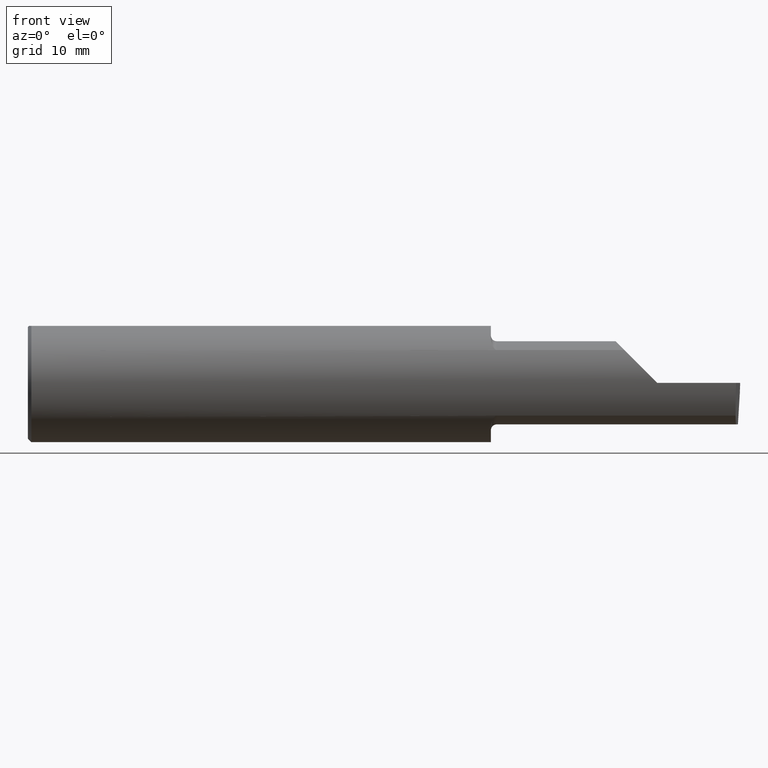
[diagram: clean part render]
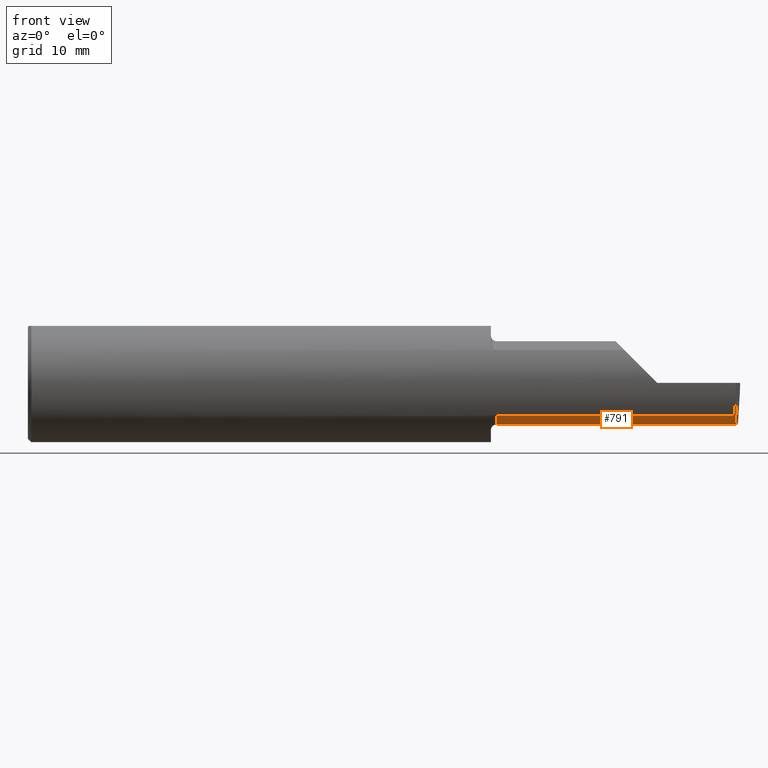
[diagram: same view with one face highlighted and labeled with its STEP entity id]
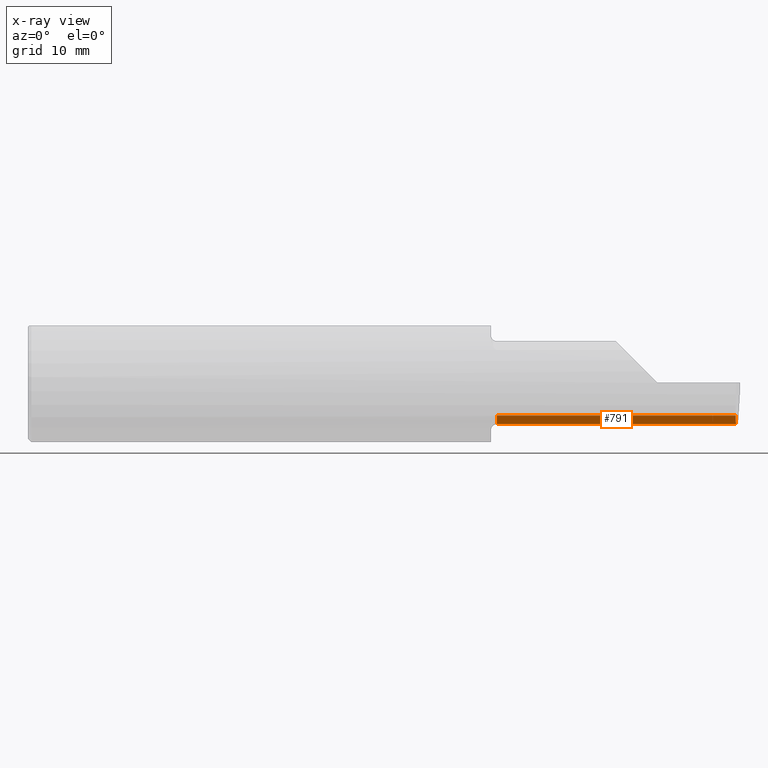
[diagram: x-ray of the same camera — body ghosted, the highlighted face saturated]
A machine part, front view. The second image highlights one B-rep face of the part: STEP entity #791.
The next image is the same camera in x-ray: the body ghosted, the highlighted face saturated — about 0% of this face is hidden behind the body in this view.
In plain terms, the highlighted cylindrical surface (partial cylindrical patch) has radius 4.445 mm, axis along (-1, -0, -0).
Its self-contained STEP definition (entity closure, byte-faithful):
#21 = EDGE_CURVE ( 'NONE', #748, #388, #720, .T. ) ;
#31 = ORIENTED_EDGE ( 'NONE', *, *, #21, .F. ) ;
#57 = CARTESIAN_POINT ( 'NONE',  ( 2.980479240051444378, -0.2080850024789291652, -0.1382955322609665250 ) ) ;
#65 = ORIENTED_EDGE ( 'NONE', *, *, #654, .F. ) ;
#73 = CARTESIAN_POINT ( 'NONE',  ( 2.424500000000000099, -0.2080850024789291652, -0.1382955322609665250 ) ) ;
#121 = VERTEX_POINT ( 'NONE', #555 ) ;
#126 = VECTOR ( 'NONE', #576, 39.37007874015748143 ) ;
#135 = CARTESIAN_POINT ( 'NONE',  ( 2.980931506555613453, -0.1771157075472509779, -0.1623092683844330475 ) ) ;
#157 = DIRECTION ( 'NONE',  ( -1.000000000000000000, -0.000000000000000000, -0.000000000000000000 ) ) ;
#203 = CARTESIAN_POINT ( 'NONE',  ( 1.950000000000000178, -0.1008499999999999674, 0.000000000000000000 ) ) ;
#256 = LINE ( 'NONE', #73, #126 ) ;
#282 = EDGE_CURVE ( 'NONE', #388, #121, #618, .T. ) ;
#308 = EDGE_CURVE ( 'NONE', #121, #439, #344, .T. ) ;
#315 = CARTESIAN_POINT ( 'NONE',  ( 1.950000000000000178, -0.1008499999999999536, -0.1749999999999999889 ) ) ;
#344 = CIRCLE ( 'NONE', #549, 0.1749999999999999889 ) ;
#346 = CARTESIAN_POINT ( 'NONE',  ( 1.975000000000000089, -0.1008499999999999674, 0.000000000000000000 ) ) ;
#360 = CARTESIAN_POINT ( 'NONE',  ( 1.975000000000000089, -0.2080850024789291375, -0.1382955322609665805 ) ) ;
#381 = VECTOR ( 'NONE', #157, 39.37007874015748143 ) ;
#388 = VERTEX_POINT ( 'NONE', #638 ) ;
#390 = CARTESIAN_POINT ( 'NONE',  ( 2.983262242683407006, -0.1008499999999999674, -0.1749999999999999889 ) ) ;
#397 = CARTESIAN_POINT ( 'NONE',  ( 2.980479240051444378, -0.2080850024789291652, -0.1382955322609665250 ) ) ;
#439 = VERTEX_POINT ( 'NONE', #360 ) ;
#519 = ORIENTED_EDGE ( 'NONE', *, *, #657, .T. ) ;
#521 = DIRECTION ( 'NONE',  ( -1.000000000000000000, -0.000000000000000000, -0.000000000000000000 ) ) ;
#527 = DIRECTION ( 'NONE',  ( 0.000000000000000000, 0.000000000000000000, 1.000000000000000000 ) ) ;
#549 = AXIS2_PLACEMENT_3D ( 'NONE', #346, #763, #594 ) ;
#552 = DIRECTION ( 'NONE',  ( -1.000000000000000000, -0.000000000000000000, -0.000000000000000000 ) ) ;
#555 = CARTESIAN_POINT ( 'NONE',  ( 1.975000000000000089, -0.1008499999999999536, -0.1749999999999999889 ) ) ;
#562 = AXIS2_PLACEMENT_3D ( 'NONE', #203, #521, #527 ) ;
#576 = DIRECTION ( 'NONE',  ( -1.000000000000000000, -0.000000000000000000, -0.000000000000000000 ) ) ;
#594 = DIRECTION ( 'NONE',  ( 0.000000000000000000, 0.000000000000000000, 1.000000000000000000 ) ) ;
#596 = EDGE_LOOP ( 'NONE', ( #785, #31, #65, #519, #786 ) ) ;
#618 = LINE ( 'NONE', #315, #381 ) ;
#620 = CARTESIAN_POINT ( 'NONE',  ( 2.981893741990786495, -0.1400387324517231025, -0.1750000000000000167 ) ) ;
#638 = CARTESIAN_POINT ( 'NONE',  ( 2.885029432995152909, -0.1008500000000000091, -0.1749999999999999889 ) ) ;
#652 = FACE_OUTER_BOUND ( 'NONE', #596, .T. ) ;
#654 = EDGE_CURVE ( 'NONE', #712, #748, #757, .T. ) ;
#657 = EDGE_CURVE ( 'NONE', #712, #439, #256, .T. ) ;
#674 = CARTESIAN_POINT ( 'NONE',  ( 3.000000000000000444, -0.1008499999999999813, -0.1749999999999999889 ) ) ;
#712 = VERTEX_POINT ( 'NONE', #397 ) ;
#720 = LINE ( 'NONE', #674, #765 ) ;
#746 = CYLINDRICAL_SURFACE ( 'NONE', #562, 0.1749999999999999889 ) ;
#748 = VERTEX_POINT ( 'NONE', #758 ) ;
#757 =( BOUNDED_CURVE ( )  B_SPLINE_CURVE ( 3, ( #57, #135, #620, #390 ),
 .UNSPECIFIED., .F., .T. ) 
 B_SPLINE_CURVE_WITH_KNOTS ( ( 4, 4 ),
 ( 0.2675252011803429530, 0.9270880441442505004 ),
 .UNSPECIFIED. ) 
 CURVE ( )  GEOMETRIC_REPRESENTATION_ITEM ( )  RATIONAL_B_SPLINE_CURVE ( ( 1.000000000000000000, 0.9640754331822828371, 0.9640754331822828371, 1.000000000000000000 ) ) 
 REPRESENTATION_ITEM ( '' )  );
#758 = CARTESIAN_POINT ( 'NONE',  ( 2.983262242683407006, -0.1008499999999999674, -0.1749999999999999889 ) ) ;
#763 = DIRECTION ( 'NONE',  ( -1.000000000000000000, -0.000000000000000000, -0.000000000000000000 ) ) ;
#765 = VECTOR ( 'NONE', #552, 39.37007874015748143 ) ;
#785 = ORIENTED_EDGE ( 'NONE', *, *, #282, .F. ) ;
#786 = ORIENTED_EDGE ( 'NONE', *, *, #308, .F. ) ;
#791 = ADVANCED_FACE ( 'NONE', ( #652 ), #746, .T. ) ;